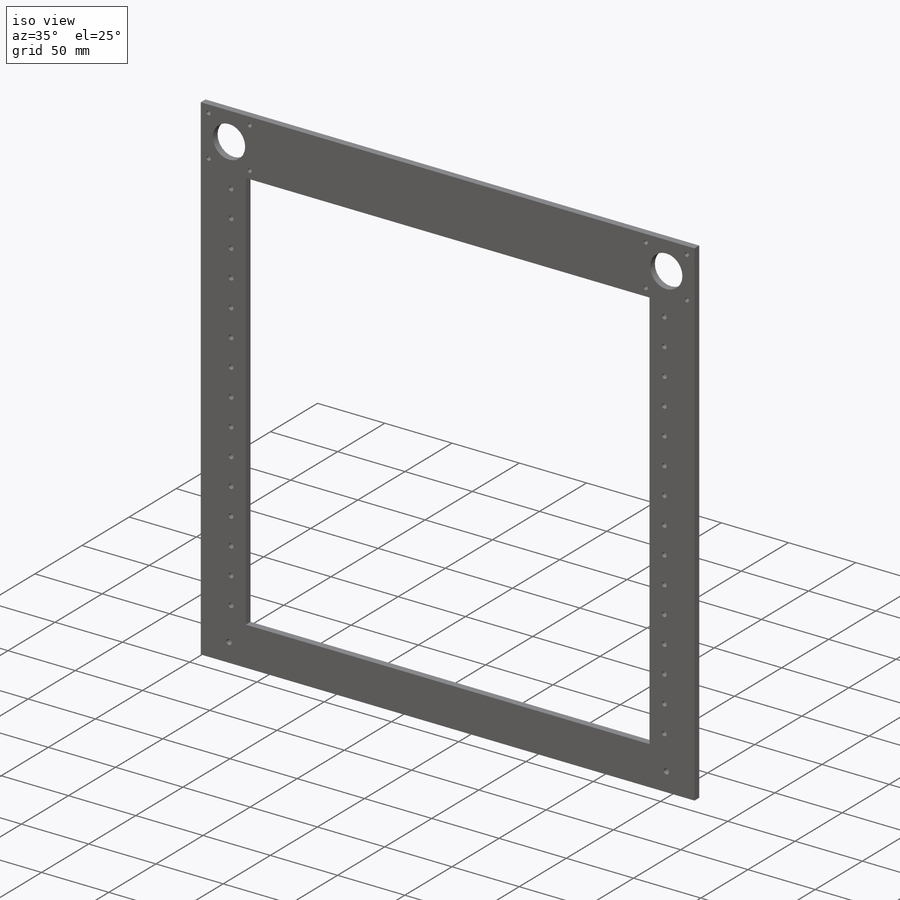
[diagram: iso view]
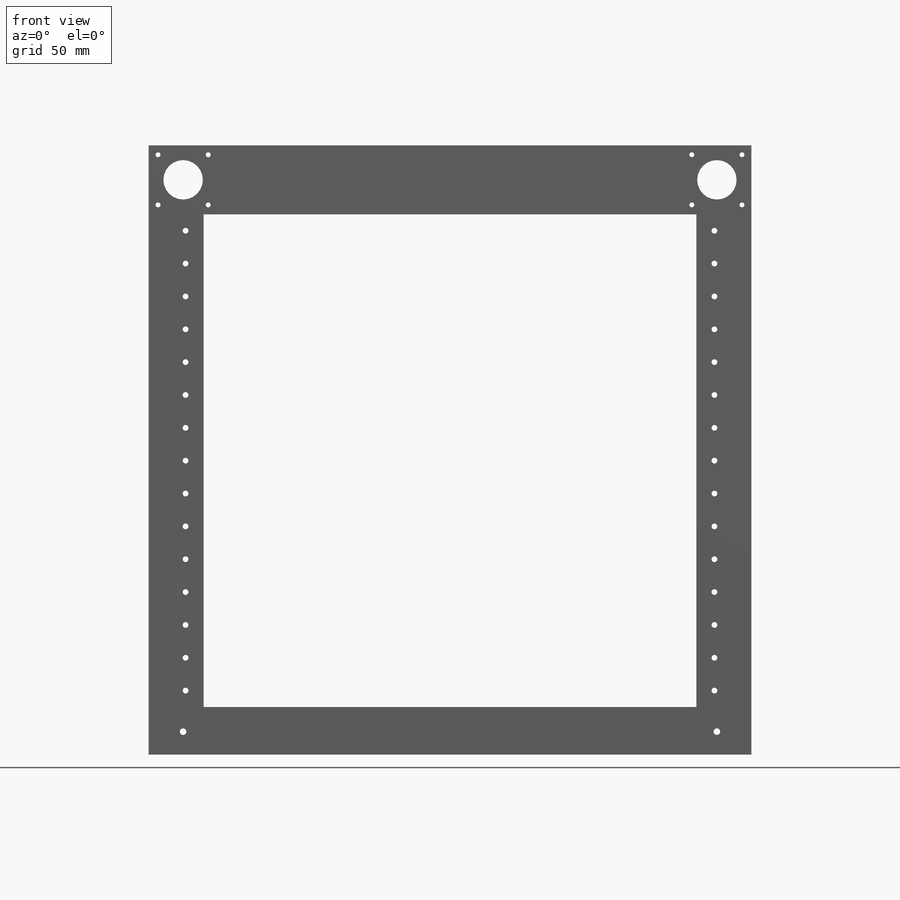
[diagram: front view]
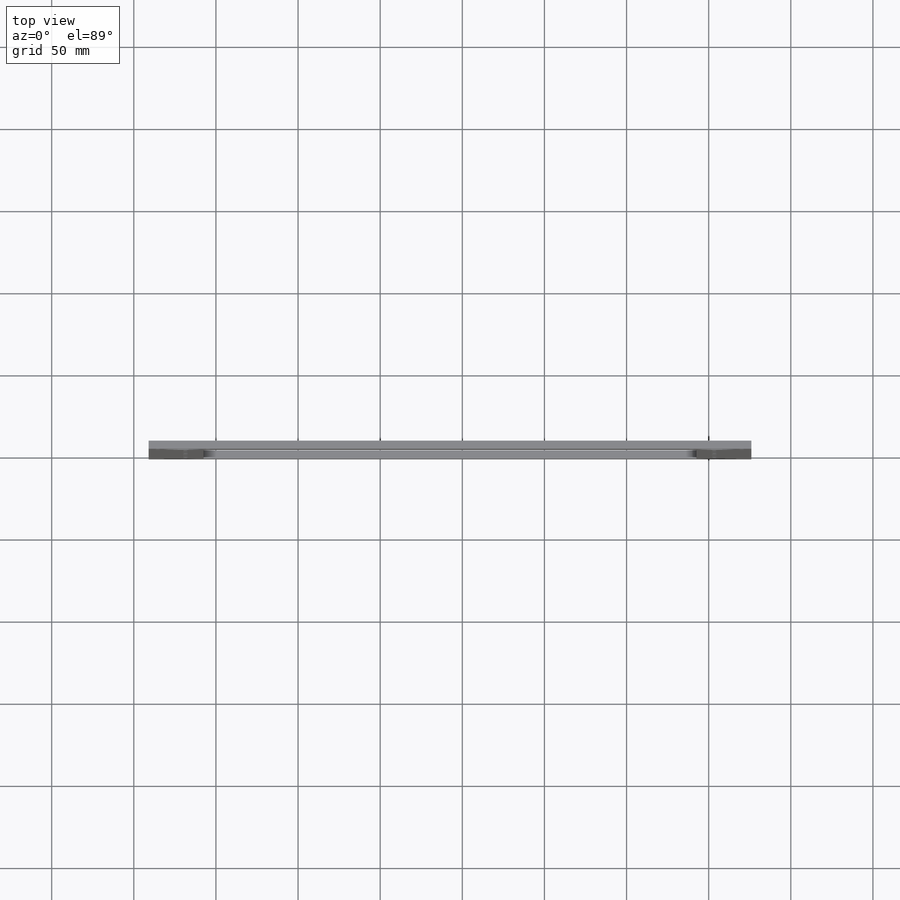
[diagram: top view]
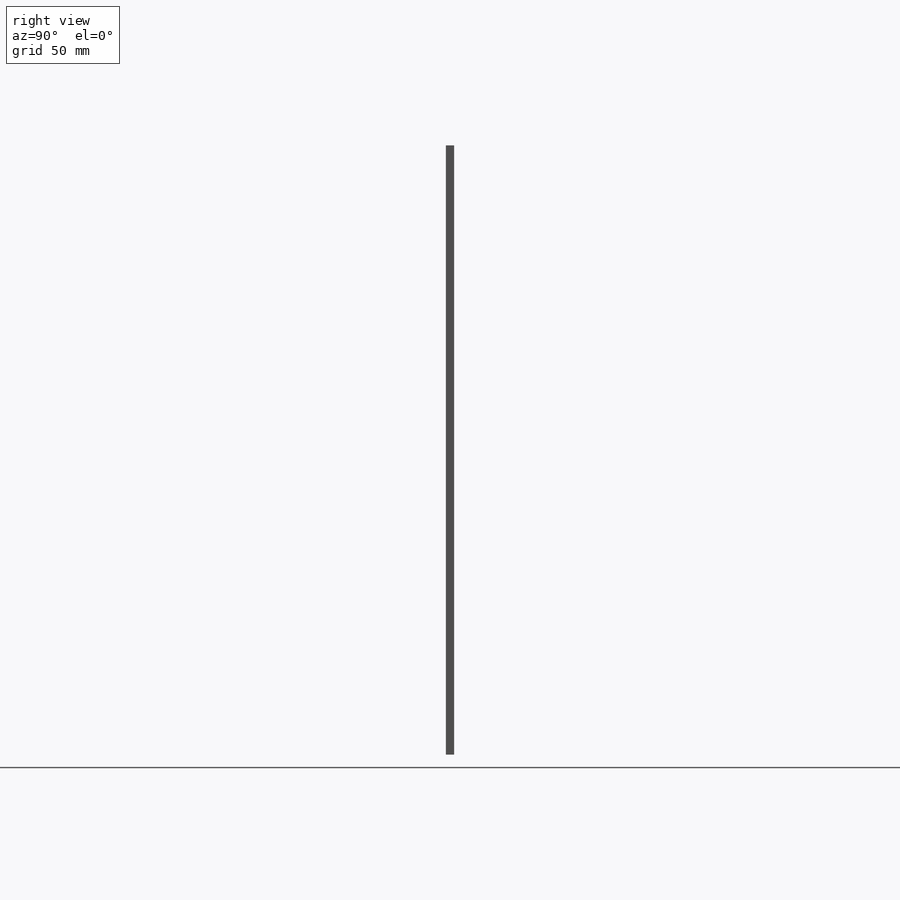
[diagram: right view]
SOLIDWORKS PART (.sldprt)
format: sldprt  version: not decoded by parser v0  size: 369,664 bytes
history: native  units: mm
features: sketch x7, cut_extrude x4, mirror x4, extrude x2, material x1, plane x1 (+13 scaffold rows collapsed)
feature tree (32):
  scaffold x13  (default folders/planes/origin — collapsed)
  material  "Material <not specified>"
  sketch  "Sketch2"  dims[D1=300.0mm D2=300.0mm D3=29.0mm D4=42.0mm D5=23.5mm D6=23.5mm]
  extrude  "Boss-Extrude1"  Depth=5mm
  sketch  "Sketch3"  dims[D2=24.0mm D1=0.0mm]
  sketch  "Sketch6"  dims[D1=15.0]
  cut_extrude  "Cut-Extrude1"  Depth=10mm
  plane  "Plane1"
  mirror  "Mirror1"
  sketch  "Sketch7"  dims[D1=10.0mm]
  extrude  "Boss-Extrude2"  Depth=5mm
  mirror  "Mirror2"
  cut_extrude  "Cut-Extrude2"  Depth=5mm
  sketch  "Sketch8"  dims[D1=0.0mm]
  sketch  "Sketch9"  dims[D2=3.0mm D1=0.0mm]
  cut_extrude  "Cut-Extrude3"  [1 undecoded]
  mirror  "Mirror3"
  sketch  "Sketch10"  dims[c1.D1=24.0mm c1.D2=4.0mm c2.D1=25.0mm]
  cut_extrude  "Cut-Extrude4"  Depth=5mm
  mirror  "Mirror4"
decode coverage: 12 of 17 modeling features carry decoded parameters
note: 1 parameter value undecoded
note: suppression state not decoded; provenance and decode notes live in map.json
